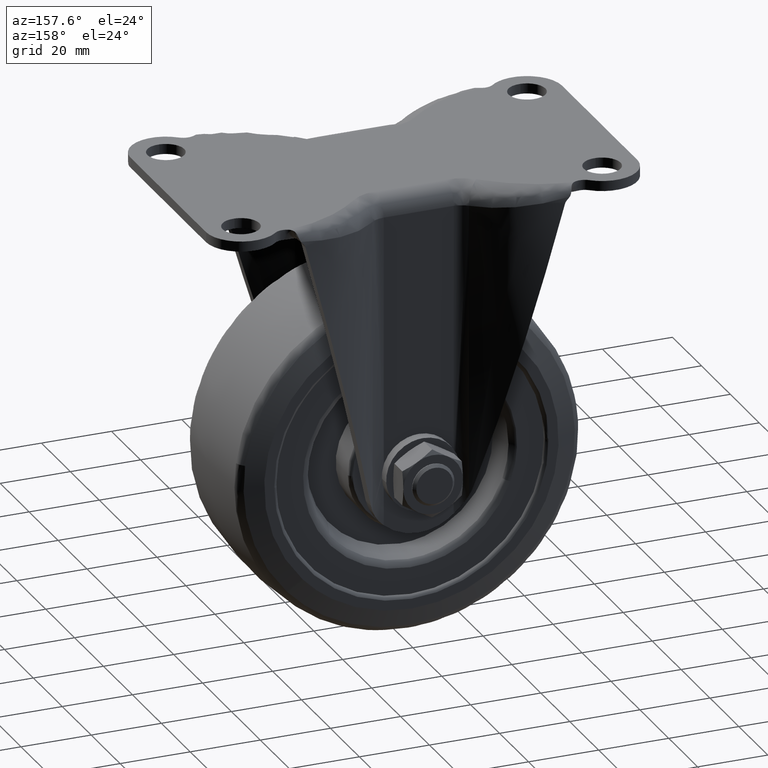
[diagram: clean part render]
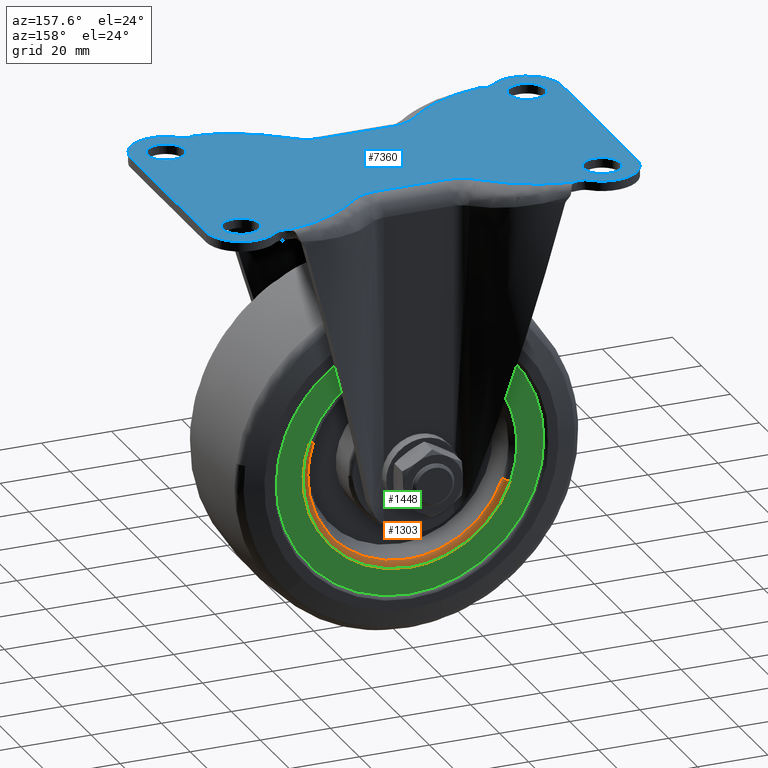
[diagram: same view with three faces highlighted in distinct colors, each labeled with its STEP entity id]
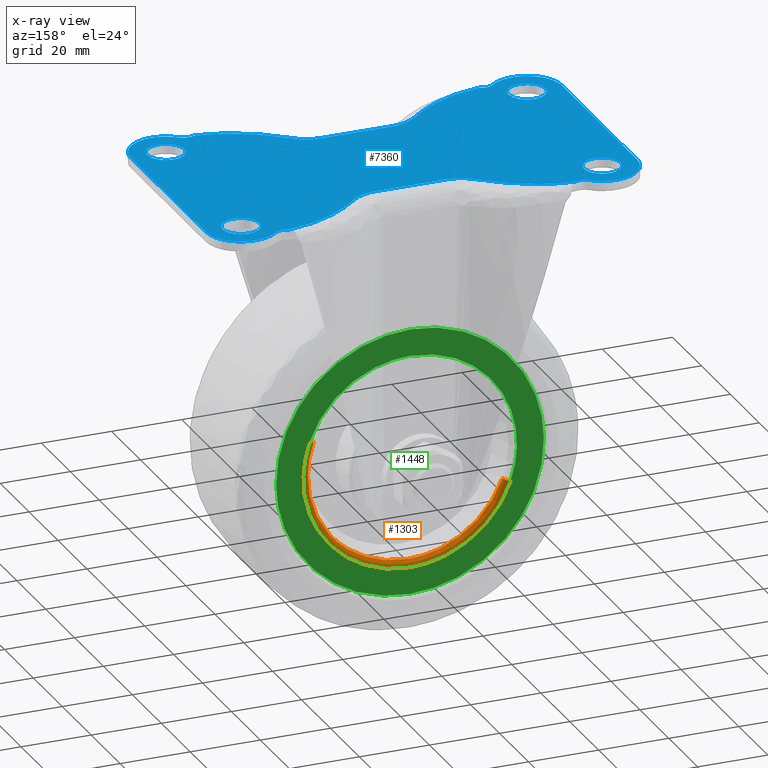
[diagram: x-ray of the same camera — body ghosted, the three highlighted faces saturated]
A machine part, auxiliary view with three faces highlighted in distinct colors.
The next image is the same camera in x-ray (body ghosted, the three faces saturated) — at least one of them is partly hidden behind the body in this view.
Their STEP definitions:

[orange] entity #1303 — the highlighted face is a freeform B-spline surface patch.
#1075=CARTESIAN_POINT('',(0.0,16.702605456787492,-108.629567658258690));
#1076=VERTEX_POINT('',#1075);
#1077=CARTESIAN_POINT('',(22.405733176714559,16.702605457713421,-97.822324908037615));
#1078=VERTEX_POINT('',#1077);
#1079=CARTESIAN_POINT('',(0.0,16.702605456787492,-108.629567658258690));
#1080=CARTESIAN_POINT('',(13.809264132668694,16.702605457121180,-108.629567658237140));
#1081=CARTESIAN_POINT('',(22.405733176714559,16.702605457713425,-97.822324908037615));
#1089=(BOUNDED_CURVE()B_SPLINE_CURVE(2,(#1079,#1080,#1081),.UNSPECIFIED.,.F.,.U.)B_SPLINE_CURVE_WITH_KNOTS((3,3),(0.0,0.142136122606926),.UNSPECIFIED.)CURVE()GEOMETRIC_REPRESENTATION_ITEM()RATIONAL_B_SPLINE_CURVE((1.0,0.833477174159976,0.856305618643547))REPRESENTATION_ITEM(''));
#1090=EDGE_CURVE('',#1076,#1078,#1089,.T.);
#1092=CARTESIAN_POINT('',(-26.875544491517779,16.702605458852791,-89.866977887257605));
#1093=VERTEX_POINT('',#1092);
#1094=CARTESIAN_POINT('',(-26.875544491517783,16.702605458852783,-89.866977887257605));
#1095=CARTESIAN_POINT('',(-19.987123739745002,16.702605457820138,-108.629567658392220));
#1096=CARTESIAN_POINT('',(0.0,16.702605456787492,-108.629567658258690));
#1104=(BOUNDED_CURVE()B_SPLINE_CURVE(2,(#1094,#1095,#1096),.UNSPECIFIED.,.F.,.U.)B_SPLINE_CURVE_WITH_KNOTS((3,3),(0.808539649797348,1.0),.UNSPECIFIED.)CURVE()GEOMETRIC_REPRESENTATION_ITEM()RATIONAL_B_SPLINE_CURVE((0.894951884913486,0.775690247015977,1.0))REPRESENTATION_ITEM(''));
#1105=EDGE_CURVE('',#1093,#1076,#1104,.T.);
#1157=CARTESIAN_POINT('',(26.875544491517779,16.702605458852791,-70.133022112742395));
#1158=VERTEX_POINT('',#1157);
#1159=CARTESIAN_POINT('',(22.405733176714559,16.702605457713425,-97.822324908037615));
#1160=CARTESIAN_POINT('',(28.629567658789941,16.702605458161091,-89.997892604388610));
#1161=CARTESIAN_POINT('',(28.629567658896210,16.702605458531590,-79.999999999789054));
#1162=CARTESIAN_POINT('',(28.629567658950307,16.702605458720193,-74.910607328329306));
#1163=CARTESIAN_POINT('',(26.875544491517779,16.702605458852787,-70.133022112742395));
#1171=(BOUNDED_CURVE()B_SPLINE_CURVE(2,(#1159,#1160,#1161,#1162,#1163),.UNSPECIFIED.,.F.,.U.)B_SPLINE_CURVE_WITH_KNOTS((3,2,3),(0.142136122606926,0.250000000000000,0.308539649797348),.UNSPECIFIED.)CURVE()GEOMETRIC_REPRESENTATION_ITEM()RATIONAL_B_SPLINE_CURVE((0.856305618643547,0.873629607026572,1.0,0.931416534170570,0.894951884913486))REPRESENTATION_ITEM(''));
#1172=EDGE_CURVE('',#1078,#1158,#1171,.T.);
#1209=CARTESIAN_POINT('',(-27.116696193610878,16.596070842580563,-89.103976466717910));
#1210=CARTESIAN_POINT('',(-26.979750400831385,16.596070842580549,-89.476987614491463));
#1211=CARTESIAN_POINT('',(-16.986831328596047,16.596070842580559,-116.695569047983820));
#1212=CARTESIAN_POINT('',(9.854368859693883,16.596070842580556,-106.841200188289950));
#1213=CARTESIAN_POINT('',(36.695569047983824,16.596070842580559,-96.986831328596054));
#1214=CARTESIAN_POINT('',(26.702649975696801,16.596070842580556,-69.768249894962921));
#1215=CARTESIAN_POINT('',(26.565704182866813,16.596070842580549,-69.395238747051820));
#1216=CARTESIAN_POINT('',(-27.557507356852085,18.084774468405019,-89.251971429959795));
#1217=CARTESIAN_POINT('',(-27.418335362407582,18.084774468405030,-89.631046276525339));
#1218=CARTESIAN_POINT('',(-17.262970605456232,18.084774468405019,-117.292095127796270));
#1219=CARTESIAN_POINT('',(10.014562261170028,18.084774468405026,-107.277532866626260));
#1220=CARTESIAN_POINT('',(37.292095127796273,18.084774468405019,-97.262970605456204));
#1221=CARTESIAN_POINT('',(27.136730370792399,18.084774468405016,-69.601921754042209));
#1222=CARTESIAN_POINT('',(26.997558376296578,18.084774468405023,-69.222846907336873));
#1223=CARTESIAN_POINT('',(-29.034209491893694,17.996816685409279,-89.747749432920898));
#1224=CARTESIAN_POINT('',(-28.887579798947179,17.996816685409282,-90.147137460501497));
#1225=CARTESIAN_POINT('',(-18.188027622410967,17.996816685409275,-119.290436842171200));
#1226=CARTESIAN_POINT('',(10.551204609880124,17.996816685409275,-108.739232232291090));
#1227=CARTESIAN_POINT('',(39.290436842171196,17.996816685409275,-98.188027622410942));
#1228=CARTESIAN_POINT('',(28.590884665579644,17.996816685409275,-69.044728240590501));
#1229=CARTESIAN_POINT('',(28.444254972579056,17.996816685409279,-68.645340212862621));
#1237=(BOUNDED_SURFACE()B_SPLINE_SURFACE(2,2,((#1209,#1216,#1223),(#1210,#1217,#1224),(#1211,#1218,#1225),(#1212,#1219,#1226),(#1213,#1220,#1227),(#1214,#1221,#1228),(#1215,#1222,#1229)),.UNSPECIFIED.,.F.,.F.,.U.)B_SPLINE_SURFACE_WITH_KNOTS((3,1,2,1,3),(3,3),(0.0,1.014488156819372,51.738895999342233,102.463303841865100,103.477791999065200),(0.0,2.751187006861091),.UNSPECIFIED.)GEOMETRIC_REPRESENTATION_ITEM()RATIONAL_B_SPLINE_SURFACE(((0.929529618942800,0.732335666581147,0.927817448412365),(0.924147614604446,0.728095421134043,0.922445357592672),(0.649665393340150,0.511842903325214,0.648468725780073),(0.918765610266092,0.723855175686938,0.917073266772979),(0.649665393340150,0.511842903325214,0.648468725780073),(0.924147614606466,0.728095421135634,0.922445357594688),(0.929529618946840,0.732335666584330,0.927817448416398)))REPRESENTATION_ITEM('')SURFACE());
#1238=ORIENTED_EDGE('',*,*,#1105,.T.);
#1239=ORIENTED_EDGE('',*,*,#1090,.T.);
#1240=ORIENTED_EDGE('',*,*,#1172,.T.);
#1241=CARTESIAN_POINT('',(28.633346022849171,18.0,-69.487670021255980));
#1242=VERTEX_POINT('',#1241);
#1243=CARTESIAN_POINT('',(26.875544491517779,16.702605458852787,-70.133022112742395));
#1244=CARTESIAN_POINT('',(27.332526085848496,17.999999995623956,-69.965247752249653));
#1245=CARTESIAN_POINT('',(28.633346022849171,17.999999999999993,-69.487670021255980));
#1253=(BOUNDED_CURVE()B_SPLINE_CURVE(2,(#1243,#1244,#1245),.UNSPECIFIED.,.F.,.U.)B_SPLINE_CURVE_WITH_KNOTS((3,3),(-1.672383373753804,-0.334035096339524),.UNSPECIFIED.)CURVE()GEOMETRIC_REPRESENTATION_ITEM()RATIONAL_B_SPLINE_CURVE((0.901863037578349,0.740680886792593,0.900324417120468))REPRESENTATION_ITEM(''));
#1254=EDGE_CURVE('',#1158,#1242,#1253,.T.);
#1255=ORIENTED_EDGE('',*,*,#1254,.T.);
#1256=CARTESIAN_POINT('',(0.0,18.0,-110.502091509132800));
#1257=VERTEX_POINT('',#1256);
#1258=CARTESIAN_POINT('',(0.0,18.0,-110.502091509132800));
#1259=CARTESIAN_POINT('',(30.502091507063202,18.000000000000007,-110.502091509892620));
#1260=CARTESIAN_POINT('',(30.502091504098711,18.0,-80.000000001848193));
#1261=CARTESIAN_POINT('',(30.502091503571716,18.0,-74.577734362311148));
#1262=CARTESIAN_POINT('',(28.633346022849171,18.0,-69.487670021255980));
#1270=(BOUNDED_CURVE()B_SPLINE_CURVE(2,(#1258,#1259,#1260,#1261,#1262),.UNSPECIFIED.,.F.,.U.)B_SPLINE_CURVE_WITH_KNOTS((3,2,3),(0.0,0.250000000000000,0.308539649798725),.UNSPECIFIED.)CURVE()GEOMETRIC_REPRESENTATION_ITEM()RATIONAL_B_SPLINE_CURVE((1.0,0.707106781186548,1.0,0.931416534168957,0.894951884911770))REPRESENTATION_ITEM(''));
#1271=EDGE_CURVE('',#1257,#1242,#1270,.T.);
#1272=ORIENTED_EDGE('',*,*,#1271,.F.);
#1273=CARTESIAN_POINT('',(-28.633346022849150,18.0,-90.512329978744049));
#1274=VERTEX_POINT('',#1273);
#1275=CARTESIAN_POINT('',(-28.633346022849153,18.000000000000004,-90.512329978744049));
#1276=CARTESIAN_POINT('',(-21.294386436065448,17.999999999999996,-110.502091508044430));
#1277=CARTESIAN_POINT('',(0.0,18.0,-110.502091509132800));
#1285=(BOUNDED_CURVE()B_SPLINE_CURVE(2,(#1275,#1276,#1277),.UNSPECIFIED.,.F.,.U.)B_SPLINE_CURVE_WITH_KNOTS((3,3),(0.808539649798725,1.0),.UNSPECIFIED.)CURVE()GEOMETRIC_REPRESENTATION_ITEM()RATIONAL_B_SPLINE_CURVE((0.894951884911770,0.775690247017591,1.0))REPRESENTATION_ITEM(''));
#1286=EDGE_CURVE('',#1274,#1257,#1285,.T.);
#1287=ORIENTED_EDGE('',*,*,#1286,.F.);
#1288=CARTESIAN_POINT('',(-26.875544491517779,16.702605458852787,-89.866977887257605));
#1289=CARTESIAN_POINT('',(-27.332526085848492,17.999999995623952,-90.034752247750362));
#1290=CARTESIAN_POINT('',(-28.633346022849150,18.000000000000004,-90.512329978744049));
#1298=(BOUNDED_CURVE()B_SPLINE_CURVE(2,(#1288,#1289,#1290),.UNSPECIFIED.,.F.,.U.)B_SPLINE_CURVE_WITH_KNOTS((3,3),(-1.672383373753804,-0.334035096339526),.UNSPECIFIED.)CURVE()GEOMETRIC_REPRESENTATION_ITEM()RATIONAL_B_SPLINE_CURVE((0.901863037578349,0.740680886792594,0.900324417120468))REPRESENTATION_ITEM(''));
#1299=EDGE_CURVE('',#1093,#1274,#1298,.T.);
#1300=ORIENTED_EDGE('',*,*,#1299,.F.);
#1301=EDGE_LOOP('',(#1238,#1239,#1240,#1255,#1272,#1287,#1300));
#1302=FACE_OUTER_BOUND('',#1301,.T.);
#1303=ADVANCED_FACE('',(#1302),#1237,.T.);

[blue] entity #7360 — the highlighted face is a freeform B-spline surface patch.
#3545=CARTESIAN_POINT('',(-51.820504832835482,20.759792308302170,1.318390E-016));
#3546=VERTEX_POINT('',#3545);
#3547=CARTESIAN_POINT('',(-46.250000000000000,26.0,0.0));
#3548=VERTEX_POINT('',#3547);
#3549=CARTESIAN_POINT('',(-51.820504832835482,20.759792308302170,0.0));
#3550=CARTESIAN_POINT('',(-51.660402007456717,20.749999999999996,0.0));
#3551=CARTESIAN_POINT('',(-51.500000000000000,20.750000000000000,0.0));
#3552=CARTESIAN_POINT('',(-46.249999999999993,20.750000000000000,0.0));
#3553=CARTESIAN_POINT('',(-46.250000000000000,26.0,0.0));
#3561=(BOUNDED_CURVE()B_SPLINE_CURVE(2,(#3549,#3550,#3551,#3552,#3553),.UNSPECIFIED.,.F.,.U.)B_SPLINE_CURVE_WITH_KNOTS((3,2,3),(0.239332962232832,0.250000000000000,0.500000000000000),.UNSPECIFIED.)CURVE()GEOMETRIC_REPRESENTATION_ITEM()RATIONAL_B_SPLINE_CURVE((0.976072041653620,0.987502787892678,1.0,0.707106781186547,1.0))REPRESENTATION_ITEM(''));
#3562=EDGE_CURVE('',#3546,#3548,#3561,.T.);
#3564=CARTESIAN_POINT('',(-51.179495167164532,31.240207691697830,1.318390E-016));
#3565=VERTEX_POINT('',#3564);
#3566=CARTESIAN_POINT('',(-46.250000000000000,26.0,0.0));
#3567=CARTESIAN_POINT('',(-46.250000000000000,30.938706850992908,0.0));
#3568=CARTESIAN_POINT('',(-51.179495167164539,31.240207691697826,0.0));
#3576=(BOUNDED_CURVE()B_SPLINE_CURVE(2,(#3566,#3567,#3568),.UNSPECIFIED.,.F.,.U.)B_SPLINE_CURVE_WITH_KNOTS((3,3),(0.500000000000000,0.739332962232832),.UNSPECIFIED.)CURVE()GEOMETRIC_REPRESENTATION_ITEM()RATIONAL_B_SPLINE_CURVE((1.0,0.719603993293870,0.976072041653621))REPRESENTATION_ITEM(''));
#3577=EDGE_CURVE('',#3548,#3565,#3576,.T.);
#3644=CARTESIAN_POINT('',(-56.749999999999993,26.0,0.0));
#3645=VERTEX_POINT('',#3644);
#3646=CARTESIAN_POINT('',(-56.749999999999993,26.0,0.0));
#3647=CARTESIAN_POINT('',(-56.749999999999986,21.061293149007099,0.0));
#3648=CARTESIAN_POINT('',(-51.820504832835489,20.759792308302160,0.0));
#3656=(BOUNDED_CURVE()B_SPLINE_CURVE(2,(#3646,#3647,#3648),.UNSPECIFIED.,.F.,.U.)B_SPLINE_CURVE_WITH_KNOTS((3,3),(0.0,0.239332962232832),.UNSPECIFIED.)CURVE()GEOMETRIC_REPRESENTATION_ITEM()RATIONAL_B_SPLINE_CURVE((1.0,0.719603993293870,0.976072041653620))REPRESENTATION_ITEM(''));
#3657=EDGE_CURVE('',#3645,#3546,#3656,.T.);
#3691=CARTESIAN_POINT('',(-51.179495167164532,31.240207691697837,0.0));
#3692=CARTESIAN_POINT('',(-51.339597992543283,31.250000000000007,0.0));
#3693=CARTESIAN_POINT('',(-51.500000000000000,31.250000000000000,0.0));
#3694=CARTESIAN_POINT('',(-56.749999999999993,31.250000000000004,0.0));
#3695=CARTESIAN_POINT('',(-56.749999999999993,26.0,0.0));
#3703=(BOUNDED_CURVE()B_SPLINE_CURVE(2,(#3691,#3692,#3693,#3694,#3695),.UNSPECIFIED.,.F.,.U.)B_SPLINE_CURVE_WITH_KNOTS((3,2,3),(0.739332962232832,0.750000000000000,1.0),.UNSPECIFIED.)CURVE()GEOMETRIC_REPRESENTATION_ITEM()RATIONAL_B_SPLINE_CURVE((0.976072041653620,0.987502787892678,1.0,0.707106781186547,1.0))REPRESENTATION_ITEM(''));
#3704=EDGE_CURVE('',#3565,#3645,#3703,.T.);
#3727=CARTESIAN_POINT('',(-51.820504832835482,-31.240207691697830,1.318390E-016));
#3728=VERTEX_POINT('',#3727);
#3729=CARTESIAN_POINT('',(-46.250000000000000,-26.0,0.0));
#3730=VERTEX_POINT('',#3729);
#3731=CARTESIAN_POINT('',(-51.820504832835482,-31.240207691697837,0.0));
#3732=CARTESIAN_POINT('',(-51.660402007456717,-31.250000000000007,0.0));
#3733=CARTESIAN_POINT('',(-51.500000000000000,-31.250000000000000,0.0));
#3734=CARTESIAN_POINT('',(-46.249999999999993,-31.250000000000004,0.0));
#3735=CARTESIAN_POINT('',(-46.250000000000000,-26.0,0.0));
#3743=(BOUNDED_CURVE()B_SPLINE_CURVE(2,(#3731,#3732,#3733,#3734,#3735),.UNSPECIFIED.,.F.,.U.)B_SPLINE_CURVE_WITH_KNOTS((3,2,3),(0.239332962232832,0.250000000000000,0.500000000000000),.UNSPECIFIED.)CURVE()GEOMETRIC_REPRESENTATION_ITEM()RATIONAL_B_SPLINE_CURVE((0.976072041653620,0.987502787892678,1.0,0.707106781186547,1.0))REPRESENTATION_ITEM(''));
#3744=EDGE_CURVE('',#3728,#3730,#3743,.T.);
#3746=CARTESIAN_POINT('',(-51.179495167164532,-20.759792308302170,1.318390E-016));
#3747=VERTEX_POINT('',#3746);
#3748=CARTESIAN_POINT('',(-46.250000000000000,-26.0,0.0));
#3749=CARTESIAN_POINT('',(-46.250000000000000,-21.061293149007092,0.0));
#3750=CARTESIAN_POINT('',(-51.179495167164539,-20.759792308302170,0.0));
#3758=(BOUNDED_CURVE()B_SPLINE_CURVE(2,(#3748,#3749,#3750),.UNSPECIFIED.,.F.,.U.)B_SPLINE_CURVE_WITH_KNOTS((3,3),(0.500000000000000,0.739332962232832),.UNSPECIFIED.)CURVE()GEOMETRIC_REPRESENTATION_ITEM()RATIONAL_B_SPLINE_CURVE((1.0,0.719603993293870,0.976072041653621))REPRESENTATION_ITEM(''));
#3759=EDGE_CURVE('',#3730,#3747,#3758,.T.);
#3826=CARTESIAN_POINT('',(-56.749999999999993,-26.0,0.0));
#3827=VERTEX_POINT('',#3826);
#3828=CARTESIAN_POINT('',(-56.749999999999993,-26.0,0.0));
#3829=CARTESIAN_POINT('',(-56.749999999999986,-30.938706850992901,0.0));
#3830=CARTESIAN_POINT('',(-51.820504832835489,-31.240207691697833,0.0));
#3838=(BOUNDED_CURVE()B_SPLINE_CURVE(2,(#3828,#3829,#3830),.UNSPECIFIED.,.F.,.U.)B_SPLINE_CURVE_WITH_KNOTS((3,3),(0.0,0.239332962232832),.UNSPECIFIED.)CURVE()GEOMETRIC_REPRESENTATION_ITEM()RATIONAL_B_SPLINE_CURVE((1.0,0.719603993293870,0.976072041653620))REPRESENTATION_ITEM(''));
#3839=EDGE_CURVE('',#3827,#3728,#3838,.T.);
#3873=CARTESIAN_POINT('',(-51.179495167164532,-20.759792308302170,0.0));
#3874=CARTESIAN_POINT('',(-51.339597992543283,-20.749999999999996,0.0));
#3875=CARTESIAN_POINT('',(-51.500000000000000,-20.750000000000000,0.0));
#3876=CARTESIAN_POINT('',(-56.749999999999993,-20.750000000000000,0.0));
#3877=CARTESIAN_POINT('',(-56.749999999999993,-26.0,0.0));
#3885=(BOUNDED_CURVE()B_SPLINE_CURVE(2,(#3873,#3874,#3875,#3876,#3877),.UNSPECIFIED.,.F.,.U.)B_SPLINE_CURVE_WITH_KNOTS((3,2,3),(0.739332962232832,0.750000000000000,1.0),.UNSPECIFIED.)CURVE()GEOMETRIC_REPRESENTATION_ITEM()RATIONAL_B_SPLINE_CURVE((0.976072041653620,0.987502787892678,1.0,0.707106781186547,1.0))REPRESENTATION_ITEM(''));
#3886=EDGE_CURVE('',#3747,#3827,#3885,.T.);
#3909=CARTESIAN_POINT('',(51.179495167164532,20.759792308302170,1.318390E-016));
#3910=VERTEX_POINT('',#3909);
#3911=CARTESIAN_POINT('',(56.749999999999993,26.0,0.0));
#3912=VERTEX_POINT('',#3911);
#3913=CARTESIAN_POINT('',(51.179495167164539,20.759792308302170,0.0));
#3914=CARTESIAN_POINT('',(51.339597992543283,20.750000000000000,0.0));
#3915=CARTESIAN_POINT('',(51.500000000000000,20.750000000000000,0.0));
#3916=CARTESIAN_POINT('',(56.749999999999993,20.750000000000000,0.0));
#3917=CARTESIAN_POINT('',(56.749999999999993,26.0,0.0));
#3925=(BOUNDED_CURVE()B_SPLINE_CURVE(2,(#3913,#3914,#3915,#3916,#3917),.UNSPECIFIED.,.F.,.U.)B_SPLINE_CURVE_WITH_KNOTS((3,2,3),(0.239332962232832,0.250000000000000,0.500000000000000),.UNSPECIFIED.)CURVE()GEOMETRIC_REPRESENTATION_ITEM()RATIONAL_B_SPLINE_CURVE((0.976072041653621,0.987502787892678,1.0,0.707106781186547,1.0))REPRESENTATION_ITEM(''));
#3926=EDGE_CURVE('',#3910,#3912,#3925,.T.);
#3928=CARTESIAN_POINT('',(51.820504832835482,31.240207691697830,1.318390E-016));
#3929=VERTEX_POINT('',#3928);
#3930=CARTESIAN_POINT('',(56.749999999999993,26.0,0.0));
#3931=CARTESIAN_POINT('',(56.749999999999979,30.938706850992890,0.0));
#3932=CARTESIAN_POINT('',(51.820504832835475,31.240207691697830,0.0));
#3940=(BOUNDED_CURVE()B_SPLINE_CURVE(2,(#3930,#3931,#3932),.UNSPECIFIED.,.F.,.U.)B_SPLINE_CURVE_WITH_KNOTS((3,3),(0.500000000000000,0.739332962232832),.UNSPECIFIED.)CURVE()GEOMETRIC_REPRESENTATION_ITEM()RATIONAL_B_SPLINE_CURVE((1.0,0.719603993293870,0.976072041653620))REPRESENTATION_ITEM(''));
#3941=EDGE_CURVE('',#3912,#3929,#3940,.T.);
#4008=CARTESIAN_POINT('',(46.250000000000000,26.0,0.0));
#4009=VERTEX_POINT('',#4008);
#4010=CARTESIAN_POINT('',(46.250000000000000,26.0,0.0));
#4011=CARTESIAN_POINT('',(46.250000000000000,21.061293149007099,0.0));
#4012=CARTESIAN_POINT('',(51.179495167164532,20.759792308302170,0.0));
#4020=(BOUNDED_CURVE()B_SPLINE_CURVE(2,(#4010,#4011,#4012),.UNSPECIFIED.,.F.,.U.)B_SPLINE_CURVE_WITH_KNOTS((3,3),(0.0,0.239332962232832),.UNSPECIFIED.)CURVE()GEOMETRIC_REPRESENTATION_ITEM()RATIONAL_B_SPLINE_CURVE((1.0,0.719603993293870,0.976072041653620))REPRESENTATION_ITEM(''));
#4021=EDGE_CURVE('',#4009,#3910,#4020,.T.);
#4055=CARTESIAN_POINT('',(51.820504832835489,31.240207691697826,0.0));
#4056=CARTESIAN_POINT('',(51.660402007456732,31.249999999999993,0.0));
#4057=CARTESIAN_POINT('',(51.500000000000000,31.250000000000000,0.0));
#4058=CARTESIAN_POINT('',(46.249999999999993,31.250000000000004,0.0));
#4059=CARTESIAN_POINT('',(46.250000000000000,26.0,0.0));
#4067=(BOUNDED_CURVE()B_SPLINE_CURVE(2,(#4055,#4056,#4057,#4058,#4059),.UNSPECIFIED.,.F.,.U.)B_SPLINE_CURVE_WITH_KNOTS((3,2,3),(0.739332962232831,0.750000000000000,1.0),.UNSPECIFIED.)CURVE()GEOMETRIC_REPRESENTATION_ITEM()RATIONAL_B_SPLINE_CURVE((0.976072041653620,0.987502787892677,1.0,0.707106781186547,1.0))REPRESENTATION_ITEM(''));
#4068=EDGE_CURVE('',#3929,#4009,#4067,.T.);
#4091=CARTESIAN_POINT('',(51.179495167164532,-31.240207691697830,1.318390E-016));
#4092=VERTEX_POINT('',#4091);
#4093=CARTESIAN_POINT('',(56.749999999999993,-26.0,0.0));
#4094=VERTEX_POINT('',#4093);
#4095=CARTESIAN_POINT('',(51.179495167164518,-31.240207691697833,0.0));
#4096=CARTESIAN_POINT('',(51.339597992543275,-31.250000000000007,0.0));
#4097=CARTESIAN_POINT('',(51.500000000000000,-31.250000000000000,0.0));
#4098=CARTESIAN_POINT('',(56.749999999999993,-31.250000000000004,0.0));
#4099=CARTESIAN_POINT('',(56.749999999999993,-26.0,0.0));
#4107=(BOUNDED_CURVE()B_SPLINE_CURVE(2,(#4095,#4096,#4097,#4098,#4099),.UNSPECIFIED.,.F.,.U.)B_SPLINE_CURVE_WITH_KNOTS((3,2,3),(0.239332962232832,0.250000000000000,0.500000000000000),.UNSPECIFIED.)CURVE()GEOMETRIC_REPRESENTATION_ITEM()RATIONAL_B_SPLINE_CURVE((0.976072041653620,0.987502787892678,1.0,0.707106781186547,1.0))REPRESENTATION_ITEM(''));
#4108=EDGE_CURVE('',#4092,#4094,#4107,.T.);
#4110=CARTESIAN_POINT('',(51.820504832835482,-20.759792308302170,1.318390E-016));
#4111=VERTEX_POINT('',#4110);
#4112=CARTESIAN_POINT('',(56.749999999999993,-26.0,0.0));
#4113=CARTESIAN_POINT('',(56.749999999999979,-21.061293149007106,0.0));
#4114=CARTESIAN_POINT('',(51.820504832835475,-20.759792308302167,0.0));
#4122=(BOUNDED_CURVE()B_SPLINE_CURVE(2,(#4112,#4113,#4114),.UNSPECIFIED.,.F.,.U.)B_SPLINE_CURVE_WITH_KNOTS((3,3),(0.500000000000000,0.739332962232832),.UNSPECIFIED.)CURVE()GEOMETRIC_REPRESENTATION_ITEM()RATIONAL_B_SPLINE_CURVE((1.0,0.719603993293870,0.976072041653620))REPRESENTATION_ITEM(''));
#4123=EDGE_CURVE('',#4094,#4111,#4122,.T.);
#4190=CARTESIAN_POINT('',(46.250000000000000,-26.0,0.0));
#4191=VERTEX_POINT('',#4190);
#4192=CARTESIAN_POINT('',(46.250000000000000,-26.0,0.0));
#4193=CARTESIAN_POINT('',(46.250000000000000,-30.938706850992908,0.0));
#4194=CARTESIAN_POINT('',(51.179495167164539,-31.240207691697826,0.0));
#4202=(BOUNDED_CURVE()B_SPLINE_CURVE(2,(#4192,#4193,#4194),.UNSPECIFIED.,.F.,.U.)B_SPLINE_CURVE_WITH_KNOTS((3,3),(0.0,0.239332962232832),.UNSPECIFIED.)CURVE()GEOMETRIC_REPRESENTATION_ITEM()RATIONAL_B_SPLINE_CURVE((1.0,0.719603993293870,0.976072041653621))REPRESENTATION_ITEM(''));
#4203=EDGE_CURVE('',#4191,#4092,#4202,.T.);
#4237=CARTESIAN_POINT('',(51.820504832835489,-20.759792308302160,0.0));
#4238=CARTESIAN_POINT('',(51.660402007456732,-20.749999999999996,0.0));
#4239=CARTESIAN_POINT('',(51.500000000000000,-20.750000000000000,0.0));
#4240=CARTESIAN_POINT('',(46.249999999999993,-20.750000000000000,0.0));
#4241=CARTESIAN_POINT('',(46.250000000000000,-26.0,0.0));
#4249=(BOUNDED_CURVE()B_SPLINE_CURVE(2,(#4237,#4238,#4239,#4240,#4241),.UNSPECIFIED.,.F.,.U.)B_SPLINE_CURVE_WITH_KNOTS((3,2,3),(0.739332962232831,0.750000000000000,1.0),.UNSPECIFIED.)CURVE()GEOMETRIC_REPRESENTATION_ITEM()RATIONAL_B_SPLINE_CURVE((0.976072041653620,0.987502787892677,1.0,0.707106781186547,1.0))REPRESENTATION_ITEM(''));
#4250=EDGE_CURVE('',#4111,#4191,#4249,.T.);
#4746=CARTESIAN_POINT('',(-61.500000000000000,-26.0,0.0));
#4747=VERTEX_POINT('',#4746);
#4748=CARTESIAN_POINT('',(-44.782090500815002,-33.407407390839403,0.0));
#4749=VERTEX_POINT('',#4748);
#4750=CARTESIAN_POINT('',(-61.500000000000000,-26.0,0.0));
#4751=CARTESIAN_POINT('',(-61.500018971319257,-26.510752737910099,0.0));
#4752=CARTESIAN_POINT('',(-61.412384804357821,-27.652442663668300,0.0));
#4753=CARTESIAN_POINT('',(-61.012601017771743,-29.232316270885271,0.0));
#4754=CARTESIAN_POINT('',(-60.405779032614333,-30.610808913053940,0.0));
#4755=CARTESIAN_POINT('',(-59.547330183120678,-32.026137643174927,0.0));
#4756=CARTESIAN_POINT('',(-58.428952740984919,-33.298545826229891,0.0));
#4757=CARTESIAN_POINT('',(-57.091536481655801,-34.327556467917788,0.0));
#4758=CARTESIAN_POINT('',(-55.551360602369712,-35.211261447972859,0.0));
#4759=CARTESIAN_POINT('',(-53.803597829650357,-35.812704644348848,0.0));
#4760=CARTESIAN_POINT('',(-51.916366283562652,-36.030699749886907,0.0));
#4761=CARTESIAN_POINT('',(-50.050626664292977,-35.959817089723721,0.0));
#4762=CARTESIAN_POINT('',(-48.311715626833170,-35.549224563114372,0.0));
#4763=CARTESIAN_POINT('',(-46.395255849656323,-34.669690886699442,0.0));
#4764=CARTESIAN_POINT('',(-45.360613352694479,-33.932331198650587,0.0));
#4765=CARTESIAN_POINT('',(-44.782090500815002,-33.407407390839403,0.0));
#4766=B_SPLINE_CURVE_WITH_KNOTS('',3,(#4750,#4751,#4752,#4753,#4754,#4755,#4756,#4757,#4758,#4759,#4760,#4761,#4762,#4763,#4764,#4765),.UNSPECIFIED.,.F.,.U.,(4,1,1,1,1,1,1,1,1,1,1,1,1,4),(0.000000096518562,1.532265522446050,3.425071992243041,4.867219294183055,6.038975344894201,8.382467245532787,9.914736345991672,11.086500327589070,13.700301791654409,15.412870520723340,16.764903658515170,19.288687747871450,20.730806184796428,23.074280991555870),.UNSPECIFIED.);
#4767=EDGE_CURVE('',#4747,#4749,#4766,.T.);
#4850=CARTESIAN_POINT('',(-40.765133149982347,-32.921773131342249,0.0));
#4851=VERTEX_POINT('',#4850);
#4864=CARTESIAN_POINT('',(-40.765133149982297,-32.921773131342157,0.0));
#4865=CARTESIAN_POINT('',(-42.945612725456762,-31.741872925304861,0.0));
#4866=CARTESIAN_POINT('',(-44.782090500815052,-33.407407390839339,0.0));
#4874=(BOUNDED_CURVE()B_SPLINE_CURVE(2,(#4864,#4865,#4866),.UNSPECIFIED.,.F.,.U.)CURVE()GEOMETRIC_REPRESENTATION_ITEM()QUASI_UNIFORM_CURVE()RATIONAL_B_SPLINE_CURVE((1.0,0.816015868788193,1.0))REPRESENTATION_ITEM(''));
#4875=EDGE_CURVE('',#4851,#4749,#4874,.T.);
#4912=CARTESIAN_POINT('',(-44.782089997670951,33.407407454744998,0.0));
#4913=VERTEX_POINT('',#4912);
#4914=CARTESIAN_POINT('',(-61.500000000000000,26.0,0.0));
#4915=VERTEX_POINT('',#4914);
#4916=CARTESIAN_POINT('',(-44.782089997670951,33.407407454744998,0.0));
#4917=CARTESIAN_POINT('',(-45.360616940289503,33.932291369868992,0.0));
#4918=CARTESIAN_POINT('',(-46.690790600378193,34.880610559666863,0.0));
#4919=CARTESIAN_POINT('',(-48.577945233372468,35.625872415246143,0.0));
#4920=CARTESIAN_POINT('',(-50.587248528339543,36.015026054278778,0.0));
#4921=CARTESIAN_POINT('',(-52.433408013118722,36.035406004066900,0.0));
#4922=CARTESIAN_POINT('',(-54.590265712967437,35.586277970063513,0.0));
#4923=CARTESIAN_POINT('',(-56.279840779379107,34.846776617774509,0.0));
#4924=CARTESIAN_POINT('',(-57.803250554046890,33.820364159619849,0.0));
#4925=CARTESIAN_POINT('',(-59.034026723942830,32.662132402331338,0.0));
#4926=CARTESIAN_POINT('',(-59.994934080791502,31.346696987148960,0.0));
#4927=CARTESIAN_POINT('',(-60.678769934311660,30.040114751031670,0.0));
#4928=CARTESIAN_POINT('',(-61.301298611742070,28.343307646360770,0.0));
#4929=CARTESIAN_POINT('',(-61.500305206589047,26.931416183777230,0.0));
#4930=CARTESIAN_POINT('',(-61.500000000000000,26.0,0.0));
#4931=B_SPLINE_CURVE_WITH_KNOTS('',3,(#4916,#4917,#4918,#4919,#4920,#4921,#4922,#4923,#4924,#4925,#4926,#4927,#4928,#4929,#4930),.UNSPECIFIED.,.F.,.U.,(4,1,1,1,1,1,1,1,1,1,1,1,4),(0.000000243691758,2.343450333649990,4.867219479690075,6.038975539631597,8.472630845688890,10.365402415835471,12.618689839831800,13.970722222849931,15.863549736871221,17.666249067284081,18.838010938831509,20.280138981631229,23.074281322193940),.UNSPECIFIED.);
#4932=EDGE_CURVE('',#4913,#4915,#4931,.T.);
#4974=CARTESIAN_POINT('',(-61.500000000000000,-26.0,0.0));
#4975=CARTESIAN_POINT('',(-61.500000000000000,26.0,0.0));
#4976=QUASI_UNIFORM_CURVE('',1,(#4974,#4975),.UNSPECIFIED.,.F.,.U.);
#4977=EDGE_CURVE('',#4747,#4915,#4976,.T.);
#5547=CARTESIAN_POINT('',(-17.444356074022700,-21.563408115553749,0.0));
#5548=VERTEX_POINT('',#5547);
#5562=CARTESIAN_POINT('',(-40.765133149982347,-32.921773131342249,0.0));
#5563=CARTESIAN_POINT('',(-39.121593874615399,-32.759592246983807,0.0));
#5564=CARTESIAN_POINT('',(-36.810061538488078,-32.361452316075152,0.0));
#5565=CARTESIAN_POINT('',(-33.494032344722022,-31.438367685186630,0.0));
#5566=CARTESIAN_POINT('',(-30.838370876136921,-30.477402790444199,0.0));
#5567=CARTESIAN_POINT('',(-28.838031782135140,-29.552637183304430,0.0));
#5568=CARTESIAN_POINT('',(-26.511884875268489,-28.358047171859869,0.0));
#5569=CARTESIAN_POINT('',(-24.317988663312281,-27.058873288868270,0.0));
#5570=CARTESIAN_POINT('',(-20.842987533376579,-24.579950150951682,0.0));
#5571=CARTESIAN_POINT('',(-18.746982155387759,-22.789635767562960,0.0));
#5572=CARTESIAN_POINT('',(-17.444356074022700,-21.563408115553749,0.0));
#5573=B_SPLINE_CURVE_WITH_KNOTS('',3,(#5562,#5563,#5564,#5565,#5566,#5567,#5568,#5569,#5570,#5571,#5572),.UNSPECIFIED.,.F.,.U.,(4,1,1,1,1,1,1,1,4),(0.000028215270653,4.954490146860575,7.018840006175122,10.321777009045791,13.418274687522690,13.624766971812591,18.166378061514791,21.056402160366162,26.423825838777070),.UNSPECIFIED.);
#5574=EDGE_CURVE('',#4851,#5548,#5573,.T.);
#5634=CARTESIAN_POINT('',(-9.973043655194140,-18.600000000000001,0.0));
#5635=VERTEX_POINT('',#5634);
#5649=CARTESIAN_POINT('',(-17.444356074022700,-21.563408115553749,0.0));
#5650=CARTESIAN_POINT('',(-14.296400335893665,-18.599999999999998,0.0));
#5651=CARTESIAN_POINT('',(-9.973043655194129,-18.600000000000001,0.0));
#5659=(BOUNDED_CURVE()B_SPLINE_CURVE(2,(#5649,#5650,#5651),.UNSPECIFIED.,.F.,.U.)CURVE()GEOMETRIC_REPRESENTATION_ITEM()QUASI_UNIFORM_CURVE()RATIONAL_B_SPLINE_CURVE((1.0,0.929550347162744,1.0))REPRESENTATION_ITEM(''));
#5660=EDGE_CURVE('',#5548,#5635,#5659,.T.);
#5681=CARTESIAN_POINT('',(9.973044338536701,-18.600000000000001,0.0));
#5682=VERTEX_POINT('',#5681);
#5696=CARTESIAN_POINT('',(-9.973043655194140,-18.600000000000001,0.0));
#5697=CARTESIAN_POINT('',(9.973044338536701,-18.600000000000001,0.0));
#5698=QUASI_UNIFORM_CURVE('',1,(#5696,#5697),.UNSPECIFIED.,.F.,.U.);
#5699=EDGE_CURVE('',#5635,#5682,#5698,.T.);
#5723=CARTESIAN_POINT('',(17.444356074022899,-21.563408115553749,0.0));
#5724=VERTEX_POINT('',#5723);
#5738=CARTESIAN_POINT('',(9.973044338536703,-18.600000000000019,0.0));
#5739=CARTESIAN_POINT('',(14.296400623812694,-18.600000271039718,0.0));
#5740=CARTESIAN_POINT('',(17.444356074022881,-21.563408115553770,0.0));
#5748=(BOUNDED_CURVE()B_SPLINE_CURVE(2,(#5738,#5739,#5740),.UNSPECIFIED.,.F.,.U.)CURVE()GEOMETRIC_REPRESENTATION_ITEM()QUASI_UNIFORM_CURVE()RATIONAL_B_SPLINE_CURVE((1.0,0.929550358719857,1.0))REPRESENTATION_ITEM(''));
#5749=EDGE_CURVE('',#5682,#5724,#5748,.T.);
#5806=CARTESIAN_POINT('',(40.765132304884553,-32.921773047521803,0.0));
#5807=VERTEX_POINT('',#5806);
#5823=CARTESIAN_POINT('',(17.444356074022899,-21.563408115553749,0.0));
#5824=CARTESIAN_POINT('',(19.047416787125758,-23.072504532049340,0.0));
#5825=CARTESIAN_POINT('',(21.588673776988941,-25.194518129634709,0.0));
#5826=CARTESIAN_POINT('',(25.199997978948218,-27.598871349609588,0.0));
#5827=CARTESIAN_POINT('',(27.962771963622959,-29.148313617770821,0.0));
#5828=CARTESIAN_POINT('',(30.713358374427369,-30.419659668293050,0.0));
#5829=CARTESIAN_POINT('',(33.233747998527718,-31.347548760245150,0.0));
#5830=CARTESIAN_POINT('',(36.538650664464072,-32.309604810507253,0.0));
#5831=CARTESIAN_POINT('',(38.984622946000172,-32.746132655926637,0.0));
#5832=CARTESIAN_POINT('',(40.765132304884553,-32.921773047521803,0.0));
#5833=B_SPLINE_CURVE_WITH_KNOTS('',3,(#5823,#5824,#5825,#5826,#5827,#5828,#5829,#5830,#5831,#5832),.UNSPECIFIED.,.F.,.U.,(4,1,1,1,1,1,1,4),(-0.000018914819385,6.605949787787750,9.909016854581818,13.005562056774041,16.102065246988730,18.992168833668959,21.056514419785479,26.423833093100210),.UNSPECIFIED.);
#5834=EDGE_CURVE('',#5724,#5807,#5833,.T.);
#7163=CARTESIAN_POINT('',(-67.643849761602141,39.590585827111262,0.0));
#7164=CARTESIAN_POINT('',(67.643853060719209,39.590585827111262,0.0));
#7165=CARTESIAN_POINT('',(-67.643849761602141,-39.590587114219190,0.0));
#7166=CARTESIAN_POINT('',(67.643853060719209,-39.590587114219190,0.0));
#7167=B_SPLINE_SURFACE_WITH_KNOTS('',1,1,((#7163,#7165),(#7164,#7166)),.UNSPECIFIED.,.F.,.F.,.U.,(2,2),(2,2),(0.0,135.287702822321390),(0.0,79.181172941330445),.UNSPECIFIED.);
#7168=CARTESIAN_POINT('',(40.765132389960300,32.921773001485647,0.0));
#7169=VERTEX_POINT('',#7168);
#7170=CARTESIAN_POINT('',(44.782089500815303,33.407407390839403,0.0));
#7171=VERTEX_POINT('',#7170);
#7172=CARTESIAN_POINT('',(40.765132389960300,32.921773001485647,0.0));
#7173=CARTESIAN_POINT('',(42.945611877224025,31.741873062945032,0.0));
#7174=CARTESIAN_POINT('',(44.782089500815353,33.407407390839332,0.0));
#7182=(BOUNDED_CURVE()B_SPLINE_CURVE(2,(#7172,#7173,#7174),.UNSPECIFIED.,.F.,.U.)CURVE()GEOMETRIC_REPRESENTATION_ITEM()QUASI_UNIFORM_CURVE()RATIONAL_B_SPLINE_CURVE((1.0,0.816015891319697,1.0))REPRESENTATION_ITEM(''));
#7183=EDGE_CURVE('',#7169,#7171,#7182,.T.);
#7184=ORIENTED_EDGE('',*,*,#7183,.F.);
#7185=CARTESIAN_POINT('',(17.444356074022849,21.563408115553749,0.0));
#7186=VERTEX_POINT('',#7185);
#7187=CARTESIAN_POINT('',(40.765132389960300,32.921773001485647,0.0));
#7188=CARTESIAN_POINT('',(39.121622682405572,32.759516678441152,0.0));
#7189=CARTESIAN_POINT('',(36.402092161970863,32.291293090649681,0.0));
#7190=CARTESIAN_POINT('',(32.110517782729787,31.013586862949229,0.0));
#7191=CARTESIAN_POINT('',(29.449968658312031,29.867124118310581,0.0));
#7192=CARTESIAN_POINT('',(26.511913753137470,28.358032383334510,0.0));
#7193=CARTESIAN_POINT('',(24.317987230606381,27.058855473139420,0.0));
#7194=CARTESIAN_POINT('',(20.843009182595399,24.579953720889758,0.0));
#7195=CARTESIAN_POINT('',(18.746971286112021,22.789635425819231,0.0));
#7196=CARTESIAN_POINT('',(17.444356074022849,21.563408115553749,0.0));
#7197=B_SPLINE_CURVE_WITH_KNOTS('',3,(#7187,#7188,#7189,#7190,#7191,#7192,#7193,#7194,#7195,#7196),.UNSPECIFIED.,.F.,.U.,(4,1,1,1,1,1,1,4),(0.000028215278711,4.954489999395918,8.257424859244939,13.418274288150050,13.624766566288640,18.166377520824319,21.056401533664829,26.423825052316069),.UNSPECIFIED.);
#7198=EDGE_CURVE('',#7169,#7186,#7197,.T.);
#7199=ORIENTED_EDGE('',*,*,#7198,.T.);
#7200=CARTESIAN_POINT('',(9.973043655194299,18.600000000000001,0.0));
#7201=VERTEX_POINT('',#7200);
#7202=CARTESIAN_POINT('',(17.444356074022860,21.563408115553749,0.0));
#7203=CARTESIAN_POINT('',(14.296400335893832,18.600000000000001,0.0));
#7204=CARTESIAN_POINT('',(9.973043655194299,18.600000000000001,0.0));
#7212=(BOUNDED_CURVE()B_SPLINE_CURVE(2,(#7202,#7203,#7204),.UNSPECIFIED.,.F.,.U.)CURVE()GEOMETRIC_REPRESENTATION_ITEM()QUASI_UNIFORM_CURVE()RATIONAL_B_SPLINE_CURVE((1.0,0.929550347162745,1.0))REPRESENTATION_ITEM(''));
#7213=EDGE_CURVE('',#7186,#7201,#7212,.T.);
#7214=ORIENTED_EDGE('',*,*,#7213,.T.);
#7215=CARTESIAN_POINT('',(-9.973044338536480,18.600000000000001,0.0));
#7216=VERTEX_POINT('',#7215);
#7217=CARTESIAN_POINT('',(9.973043655194299,18.600000000000001,0.0));
#7218=CARTESIAN_POINT('',(-9.973044338536480,18.600000000000001,0.0));
#7219=QUASI_UNIFORM_CURVE('',1,(#7217,#7218),.UNSPECIFIED.,.F.,.U.);
#7220=EDGE_CURVE('',#7201,#7216,#7219,.T.);
#7221=ORIENTED_EDGE('',*,*,#7220,.T.);
#7222=CARTESIAN_POINT('',(-17.444356074022700,21.563408115553749,0.0));
#7223=VERTEX_POINT('',#7222);
#7224=CARTESIAN_POINT('',(-9.973044338536472,18.600000000000019,0.0));
#7225=CARTESIAN_POINT('',(-14.296400623812488,18.600000271039690,0.0));
#7226=CARTESIAN_POINT('',(-17.444356074022700,21.563408115553749,0.0));
#7234=(BOUNDED_CURVE()B_SPLINE_CURVE(2,(#7224,#7225,#7226),.UNSPECIFIED.,.F.,.U.)CURVE()GEOMETRIC_REPRESENTATION_ITEM()QUASI_UNIFORM_CURVE()RATIONAL_B_SPLINE_CURVE((1.0,0.929550358719856,1.0))REPRESENTATION_ITEM(''));
#7235=EDGE_CURVE('',#7216,#7223,#7234,.T.);
#7236=ORIENTED_EDGE('',*,*,#7235,.T.);
#7237=CARTESIAN_POINT('',(-40.765133154932201,32.921773128663801,0.0));
#7238=VERTEX_POINT('',#7237);
#7239=CARTESIAN_POINT('',(-17.444356074022700,21.563408115553749,0.0));
#7240=CARTESIAN_POINT('',(-18.746983406856842,22.789633697751331,0.0));
#7241=CARTESIAN_POINT('',(-21.262181765787801,24.937979517502711,0.0));
#7242=CARTESIAN_POINT('',(-25.464046476982251,27.825977212880559,0.0));
#7243=CARTESIAN_POINT('',(-29.248747594515180,29.816120117180279,0.0));
#7244=CARTESIAN_POINT('',(-32.836818845627619,31.229887453917140,0.0));
#7245=CARTESIAN_POINT('',(-36.402078575023921,32.291326350058931,0.0));
#7246=CARTESIAN_POINT('',(-39.121618790872333,32.759543093212343,0.0));
#7247=CARTESIAN_POINT('',(-40.765133154932201,32.921773128663801,0.0));
#7248=B_SPLINE_CURVE_WITH_KNOTS('',3,(#7239,#7240,#7241,#7242,#7243,#7244,#7245,#7246,#7247),.UNSPECIFIED.,.F.,.U.,(4,1,1,1,1,1,4),(-0.000018914814422,5.367383863702873,9.909017174583749,15.276269844580909,18.166421493274161,21.469362703137008,26.423833946417979),.UNSPECIFIED.);
#7249=EDGE_CURVE('',#7223,#7238,#7248,.T.);
#7250=ORIENTED_EDGE('',*,*,#7249,.T.);
#7251=CARTESIAN_POINT('',(-44.782089997670951,33.407407454744998,0.0));
#7252=CARTESIAN_POINT('',(-42.945612510809134,31.741873045987823,0.0));
#7253=CARTESIAN_POINT('',(-40.765133154932137,32.921773128663702,0.0));
#7261=(BOUNDED_CURVE()B_SPLINE_CURVE(2,(#7251,#7252,#7253),.UNSPECIFIED.,.F.,.U.)CURVE()GEOMETRIC_REPRESENTATION_ITEM()QUASI_UNIFORM_CURVE()RATIONAL_B_SPLINE_CURVE((1.0,0.816015896483748,1.0))REPRESENTATION_ITEM(''));
#7262=EDGE_CURVE('',#4913,#7238,#7261,.T.);
#7263=ORIENTED_EDGE('',*,*,#7262,.F.);
#7264=ORIENTED_EDGE('',*,*,#4932,.T.);
#7265=ORIENTED_EDGE('',*,*,#4977,.F.);
#7266=ORIENTED_EDGE('',*,*,#4767,.T.);
#7267=ORIENTED_EDGE('',*,*,#4875,.F.);
#7268=ORIENTED_EDGE('',*,*,#5574,.T.);
#7269=ORIENTED_EDGE('',*,*,#5660,.T.);
#7270=ORIENTED_EDGE('',*,*,#5699,.T.);
#7271=ORIENTED_EDGE('',*,*,#5749,.T.);
#7272=ORIENTED_EDGE('',*,*,#5834,.T.);
#7273=CARTESIAN_POINT('',(44.782089997671306,-33.407407454744998,0.0));
#7274=VERTEX_POINT('',#7273);
#7275=CARTESIAN_POINT('',(44.782089997671306,-33.407407454744998,0.0));
#7276=CARTESIAN_POINT('',(42.945612094825627,-31.741872867286773,0.0));
#7277=CARTESIAN_POINT('',(40.765132304884503,-32.921773047521711,0.0));
#7285=(BOUNDED_CURVE()B_SPLINE_CURVE(2,(#7275,#7276,#7277),.UNSPECIFIED.,.F.,.U.)CURVE()GEOMETRIC_REPRESENTATION_ITEM()QUASI_UNIFORM_CURVE()RATIONAL_B_SPLINE_CURVE((1.0,0.816015849395602,1.0))REPRESENTATION_ITEM(''));
#7286=EDGE_CURVE('',#7274,#5807,#7285,.T.);
#7287=ORIENTED_EDGE('',*,*,#7286,.F.);
#7288=CARTESIAN_POINT('',(61.500000000000000,-26.0,0.0));
#7289=VERTEX_POINT('',#7288);
#7290=CARTESIAN_POINT('',(44.782089997671306,-33.407407454744998,0.0));
#7291=CARTESIAN_POINT('',(45.160413170624473,-33.750539431251383,0.0));
#7292=CARTESIAN_POINT('',(46.064978321331317,-34.452607398847107,0.0));
#7293=CARTESIAN_POINT('',(47.503835405473218,-35.217783675932452,0.0));
#7294=CARTESIAN_POINT('',(49.275471997167372,-35.808916838097517,0.0));
#7295=CARTESIAN_POINT('',(51.132435461172172,-36.065379447506857,0.0));
#7296=CARTESIAN_POINT('',(53.119407017011397,-35.925829500694697,0.0));
#7297=CARTESIAN_POINT('',(55.104534149565318,-35.408828796132987,0.0));
#7298=CARTESIAN_POINT('',(56.915600523515558,-34.496475531434172,0.0));
#7299=CARTESIAN_POINT('',(58.301166329170890,-33.379292930618448,0.0));
#7300=CARTESIAN_POINT('',(59.304089727211320,-32.298613580053200,0.0));
#7301=CARTESIAN_POINT('',(60.228782289990868,-30.996473564761580,0.0));
#7302=CARTESIAN_POINT('',(60.950991299422938,-29.432603812253781,0.0));
#7303=CARTESIAN_POINT('',(61.402207424033392,-27.682452026939469,0.0));
#7304=CARTESIAN_POINT('',(61.500055329500192,-26.600875140287290,0.0));
#7305=CARTESIAN_POINT('',(61.500000000000000,-26.0,0.0));
#7306=B_SPLINE_CURVE_WITH_KNOTS('',3,(#7290,#7291,#7292,#7293,#7294,#7295,#7296,#7297,#7298,#7299,#7300,#7301,#7302,#7303,#7304,#7305),.UNSPECIFIED.,.F.,.U.,(4,1,1,1,1,1,1,1,1,1,1,1,1,4),(0.000000243857301,1.532265681843729,3.425072166530942,4.867219479819831,7.120594674775957,9.013400594309886,10.816084456337011,13.249626422979629,15.052342417854190,16.133963815522680,17.666249067319630,19.829473204396830,21.271655953706169,23.074281322192910),.UNSPECIFIED.);
#7307=EDGE_CURVE('',#7274,#7289,#7306,.T.);
#7308=ORIENTED_EDGE('',*,*,#7307,.T.);
#7309=CARTESIAN_POINT('',(61.500000000000000,26.0,0.0));
#7310=VERTEX_POINT('',#7309);
#7311=CARTESIAN_POINT('',(61.500000000000000,26.0,0.0));
#7312=CARTESIAN_POINT('',(61.500000000000000,-26.0,0.0));
#7313=QUASI_UNIFORM_CURVE('',1,(#7311,#7312),.UNSPECIFIED.,.F.,.U.);
#7314=EDGE_CURVE('',#7310,#7289,#7313,.T.);
#7315=ORIENTED_EDGE('',*,*,#7314,.F.);
#7316=CARTESIAN_POINT('',(61.500000000000000,26.0,0.0));
#7317=CARTESIAN_POINT('',(61.500478072935898,26.991519666997839,0.0));
#7318=CARTESIAN_POINT('',(61.256625711423723,28.613630054425428,0.0));
#7319=CARTESIAN_POINT('',(60.483887456738913,30.482179851418952,0.0));
#7320=CARTESIAN_POINT('',(59.625276201181173,31.897385323958499,0.0));
#7321=CARTESIAN_POINT('',(58.422142047821119,33.330484680097342,0.0));
#7322=CARTESIAN_POINT('',(56.784499875772617,34.579006322770560,0.0));
#7323=CARTESIAN_POINT('',(54.874294667427343,35.477290046062691,0.0));
#7324=CARTESIAN_POINT('',(53.089190419573427,35.933801201620867,0.0));
#7325=CARTESIAN_POINT('',(51.373533706564302,36.038574760344872,0.0));
#7326=CARTESIAN_POINT('',(49.694316873169342,35.883425579439987,0.0));
#7327=CARTESIAN_POINT('',(48.147473407883247,35.473713356905073,0.0));
#7328=CARTESIAN_POINT('',(46.395250237972881,34.669713372697728,0.0));
#7329=CARTESIAN_POINT('',(45.360611599100302,33.932333681535489,0.0));
#7330=CARTESIAN_POINT('',(44.782089500815303,33.407407390839403,0.0));
#7331=B_SPLINE_CURVE_WITH_KNOTS('',3,(#7316,#7317,#7318,#7319,#7320,#7321,#7322,#7323,#7324,#7325,#7326,#7327,#7328,#7329,#7330),.UNSPECIFIED.,.F.,.U.,(4,1,1,1,1,1,1,1,1,1,1,1,4),(0.000000353204481,2.974388945240719,4.867219652660037,6.038975727878640,7.931788317831130,10.455598986605240,12.168019262546750,14.241155449211631,15.953701023391361,17.305712709213779,19.288688407943390,20.730806875019191,23.074281733815472),.UNSPECIFIED.);
#7332=EDGE_CURVE('',#7310,#7171,#7331,.T.);
#7333=ORIENTED_EDGE('',*,*,#7332,.T.);
#7334=EDGE_LOOP('',(#7184,#7199,#7214,#7221,#7236,#7250,#7263,#7264,#7265,#7266,#7267,#7268,#7269,#7270,#7271,#7272,#7287,#7308,#7315,#7333));
#7335=FACE_OUTER_BOUND('',#7334,.T.);
#7336=ORIENTED_EDGE('',*,*,#4123,.F.);
#7337=ORIENTED_EDGE('',*,*,#4108,.F.);
#7338=ORIENTED_EDGE('',*,*,#4203,.F.);
#7339=ORIENTED_EDGE('',*,*,#4250,.F.);
#7340=EDGE_LOOP('',(#7336,#7337,#7338,#7339));
#7341=FACE_BOUND('',#7340,.T.);
#7342=ORIENTED_EDGE('',*,*,#3941,.F.);
#7343=ORIENTED_EDGE('',*,*,#3926,.F.);
#7344=ORIENTED_EDGE('',*,*,#4021,.F.);
#7345=ORIENTED_EDGE('',*,*,#4068,.F.);
#7346=EDGE_LOOP('',(#7342,#7343,#7344,#7345));
#7347=FACE_BOUND('',#7346,.T.);
#7348=ORIENTED_EDGE('',*,*,#3759,.F.);
#7349=ORIENTED_EDGE('',*,*,#3744,.F.);
#7350=ORIENTED_EDGE('',*,*,#3839,.F.);
#7351=ORIENTED_EDGE('',*,*,#3886,.F.);
#7352=EDGE_LOOP('',(#7348,#7349,#7350,#7351));
#7353=FACE_BOUND('',#7352,.T.);
#7354=ORIENTED_EDGE('',*,*,#3577,.F.);
#7355=ORIENTED_EDGE('',*,*,#3562,.F.);
#7356=ORIENTED_EDGE('',*,*,#3657,.F.);
#7357=ORIENTED_EDGE('',*,*,#3704,.F.);
#7358=EDGE_LOOP('',(#7354,#7355,#7356,#7357));
#7359=FACE_BOUND('',#7358,.T.);
#7360=ADVANCED_FACE('',(#7335,#7341,#7347,#7353,#7359),#7167,.F.);

[green] entity #1448 — the highlighted face is a freeform B-spline surface patch.
#1241=CARTESIAN_POINT('',(28.633346022849171,18.0,-69.487670021255980));
#1242=VERTEX_POINT('',#1241);
#1256=CARTESIAN_POINT('',(0.0,18.0,-110.502091509132800));
#1257=VERTEX_POINT('',#1256);
#1258=CARTESIAN_POINT('',(0.0,18.0,-110.502091509132800));
#1259=CARTESIAN_POINT('',(30.502091507063202,18.000000000000007,-110.502091509892620));
#1260=CARTESIAN_POINT('',(30.502091504098711,18.0,-80.000000001848193));
#1261=CARTESIAN_POINT('',(30.502091503571716,18.0,-74.577734362311148));
#1262=CARTESIAN_POINT('',(28.633346022849171,18.0,-69.487670021255980));
#1270=(BOUNDED_CURVE()B_SPLINE_CURVE(2,(#1258,#1259,#1260,#1261,#1262),.UNSPECIFIED.,.F.,.U.)B_SPLINE_CURVE_WITH_KNOTS((3,2,3),(0.0,0.250000000000000,0.308539649798725),.UNSPECIFIED.)CURVE()GEOMETRIC_REPRESENTATION_ITEM()RATIONAL_B_SPLINE_CURVE((1.0,0.707106781186548,1.0,0.931416534168957,0.894951884911770))REPRESENTATION_ITEM(''));
#1271=EDGE_CURVE('',#1257,#1242,#1270,.T.);
#1273=CARTESIAN_POINT('',(-28.633346022849150,18.0,-90.512329978744049));
#1274=VERTEX_POINT('',#1273);
#1275=CARTESIAN_POINT('',(-28.633346022849153,18.000000000000004,-90.512329978744049));
#1276=CARTESIAN_POINT('',(-21.294386436065448,17.999999999999996,-110.502091508044430));
#1277=CARTESIAN_POINT('',(0.0,18.0,-110.502091509132800));
#1285=(BOUNDED_CURVE()B_SPLINE_CURVE(2,(#1275,#1276,#1277),.UNSPECIFIED.,.F.,.U.)B_SPLINE_CURVE_WITH_KNOTS((3,3),(0.808539649798725,1.0),.UNSPECIFIED.)CURVE()GEOMETRIC_REPRESENTATION_ITEM()RATIONAL_B_SPLINE_CURVE((0.894951884911770,0.775690247017591,1.0))REPRESENTATION_ITEM(''));
#1286=EDGE_CURVE('',#1274,#1257,#1285,.T.);
#1336=CARTESIAN_POINT('',(0.0,18.0,-49.497908490867196));
#1337=VERTEX_POINT('',#1336);
#1338=CARTESIAN_POINT('',(0.0,18.0,-49.497908490867196));
#1339=CARTESIAN_POINT('',(-30.502091507063202,18.000000000000007,-49.497908490107392));
#1340=CARTESIAN_POINT('',(-30.502091504098701,18.0,-79.999999998151822));
#1341=CARTESIAN_POINT('',(-30.502091503571716,18.000000000000004,-85.422265637688895));
#1342=CARTESIAN_POINT('',(-28.633346022849153,18.000000000000004,-90.512329978744049));
#1350=(BOUNDED_CURVE()B_SPLINE_CURVE(2,(#1338,#1339,#1340,#1341,#1342),.UNSPECIFIED.,.F.,.U.)B_SPLINE_CURVE_WITH_KNOTS((3,2,3),(0.500000000000000,0.750000000000000,0.808539649798725),.UNSPECIFIED.)CURVE()GEOMETRIC_REPRESENTATION_ITEM()RATIONAL_B_SPLINE_CURVE((1.0,0.707106781186548,1.0,0.931416534168956,0.894951884911770))REPRESENTATION_ITEM(''));
#1351=EDGE_CURVE('',#1337,#1274,#1350,.T.);
#1353=CARTESIAN_POINT('',(28.633346022849171,18.0,-69.487670021255980));
#1354=CARTESIAN_POINT('',(21.294386436065466,18.0,-49.497908491955563));
#1355=CARTESIAN_POINT('',(0.0,18.0,-49.497908490867196));
#1363=(BOUNDED_CURVE()B_SPLINE_CURVE(2,(#1353,#1354,#1355),.UNSPECIFIED.,.F.,.U.)B_SPLINE_CURVE_WITH_KNOTS((3,3),(0.308539649798725,0.500000000000000),.UNSPECIFIED.)CURVE()GEOMETRIC_REPRESENTATION_ITEM()RATIONAL_B_SPLINE_CURVE((0.894951884911770,0.775690247017591,1.0))REPRESENTATION_ITEM(''));
#1364=EDGE_CURVE('',#1242,#1337,#1363,.T.);
#1371=CARTESIAN_POINT('',(-41.985367102172411,18.0,-121.988682352018900));
#1372=CARTESIAN_POINT('',(-41.985367102172411,18.0,-38.011315600114543));
#1373=CARTESIAN_POINT('',(41.985369149877307,18.0,-121.988682352018900));
#1374=CARTESIAN_POINT('',(41.985369149877307,18.0,-38.011315600114528));
#1375=B_SPLINE_SURFACE_WITH_KNOTS('',1,1,((#1371,#1373),(#1372,#1374)),.UNSPECIFIED.,.F.,.F.,.U.,(2,2),(2,2),(0.0,83.977366751904370),(0.0,83.970736252049733),.UNSPECIFIED.);
#1376=CARTESIAN_POINT('',(-38.171985862480078,18.000000002328729,-79.520291427405752));
#1377=VERTEX_POINT('',#1376);
#1378=CARTESIAN_POINT('',(0.0,18.0,-118.175000000000000));
#1379=VERTEX_POINT('',#1378);
#1380=CARTESIAN_POINT('',(-38.171985862480078,18.000000002328729,-79.520291427405752));
#1381=CARTESIAN_POINT('',(-38.174999999999997,18.000000002321503,-79.760136244385976));
#1382=CARTESIAN_POINT('',(-38.174999999999997,18.000000002314181,-79.999999999999986));
#1383=CARTESIAN_POINT('',(-38.175000000000004,18.000000001149822,-118.175000000000000));
#1384=CARTESIAN_POINT('',(0.0,18.0,-118.175000000000000));
#1392=(BOUNDED_CURVE()B_SPLINE_CURVE(2,(#1380,#1381,#1382,#1383,#1384),.UNSPECIFIED.,.F.,.U.)B_SPLINE_CURVE_WITH_KNOTS((3,2,3),(0.747784295921511,0.750000000000000,1.0),.UNSPECIFIED.)CURVE()GEOMETRIC_REPRESENTATION_ITEM()RATIONAL_B_SPLINE_CURVE((0.994854295643511,0.997404141202052,1.0,0.707106781186547,1.0))REPRESENTATION_ITEM(''));
#1393=EDGE_CURVE('',#1377,#1379,#1392,.T.);
#1394=ORIENTED_EDGE('',*,*,#1393,.F.);
#1395=CARTESIAN_POINT('',(0.0,18.0,-41.825000000000003));
#1396=VERTEX_POINT('',#1395);
#1397=CARTESIAN_POINT('',(0.0,18.0,-41.825000000000003));
#1398=CARTESIAN_POINT('',(-37.698267924165059,18.000000001164359,-41.824999999999996));
#1399=CARTESIAN_POINT('',(-38.171985862480078,18.000000002328729,-79.520291427405752));
#1407=(BOUNDED_CURVE()B_SPLINE_CURVE(2,(#1397,#1398,#1399),.UNSPECIFIED.,.F.,.U.)B_SPLINE_CURVE_WITH_KNOTS((3,3),(0.500000000000000,0.747784295921511),.UNSPECIFIED.)CURVE()GEOMETRIC_REPRESENTATION_ITEM()RATIONAL_B_SPLINE_CURVE((1.0,0.709702639984495,0.994854295643511))REPRESENTATION_ITEM(''));
#1408=EDGE_CURVE('',#1396,#1377,#1407,.T.);
#1409=ORIENTED_EDGE('',*,*,#1408,.F.);
#1410=CARTESIAN_POINT('',(38.171985862480092,18.000000002328729,-80.479708572594234));
#1411=VERTEX_POINT('',#1410);
#1412=CARTESIAN_POINT('',(38.171985862480085,18.000000002328729,-80.479708572594234));
#1413=CARTESIAN_POINT('',(38.174999999999997,18.000000002321503,-80.239863755614024));
#1414=CARTESIAN_POINT('',(38.174999999999997,18.000000002314181,-80.0));
#1415=CARTESIAN_POINT('',(38.175000000000004,18.000000001149822,-41.825000000000003));
#1416=CARTESIAN_POINT('',(0.0,18.0,-41.825000000000003));
#1424=(BOUNDED_CURVE()B_SPLINE_CURVE(2,(#1412,#1413,#1414,#1415,#1416),.UNSPECIFIED.,.F.,.U.)B_SPLINE_CURVE_WITH_KNOTS((3,2,3),(0.247784295921510,0.250000000000000,0.500000000000000),.UNSPECIFIED.)CURVE()GEOMETRIC_REPRESENTATION_ITEM()RATIONAL_B_SPLINE_CURVE((0.994854295643511,0.997404141202052,1.0,0.707106781186547,1.0))REPRESENTATION_ITEM(''));
#1425=EDGE_CURVE('',#1411,#1396,#1424,.T.);
#1426=ORIENTED_EDGE('',*,*,#1425,.F.);
#1427=CARTESIAN_POINT('',(0.0,18.0,-118.175000000000000));
#1428=CARTESIAN_POINT('',(37.698267924165059,18.000000001164359,-118.175000000000000));
#1429=CARTESIAN_POINT('',(38.171985862480085,18.000000002328729,-80.479708572594234));
#1437=(BOUNDED_CURVE()B_SPLINE_CURVE(2,(#1427,#1428,#1429),.UNSPECIFIED.,.F.,.U.)B_SPLINE_CURVE_WITH_KNOTS((3,3),(0.0,0.247784295921510),.UNSPECIFIED.)CURVE()GEOMETRIC_REPRESENTATION_ITEM()RATIONAL_B_SPLINE_CURVE((1.0,0.709702639984495,0.994854295643511))REPRESENTATION_ITEM(''));
#1438=EDGE_CURVE('',#1379,#1411,#1437,.T.);
#1439=ORIENTED_EDGE('',*,*,#1438,.F.);
#1440=EDGE_LOOP('',(#1394,#1409,#1426,#1439));
#1441=FACE_OUTER_BOUND('',#1440,.T.);
#1442=ORIENTED_EDGE('',*,*,#1271,.T.);
#1443=ORIENTED_EDGE('',*,*,#1364,.T.);
#1444=ORIENTED_EDGE('',*,*,#1351,.T.);
#1445=ORIENTED_EDGE('',*,*,#1286,.T.);
#1446=EDGE_LOOP('',(#1442,#1443,#1444,#1445));
#1447=FACE_BOUND('',#1446,.T.);
#1448=ADVANCED_FACE('',(#1441,#1447),#1375,.T.);